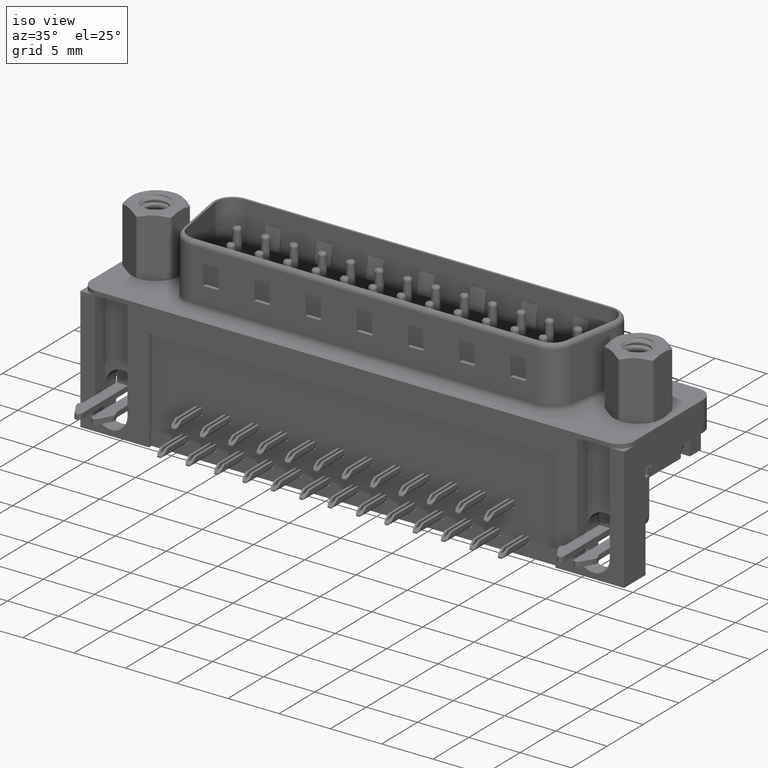
[diagram: clean part render]
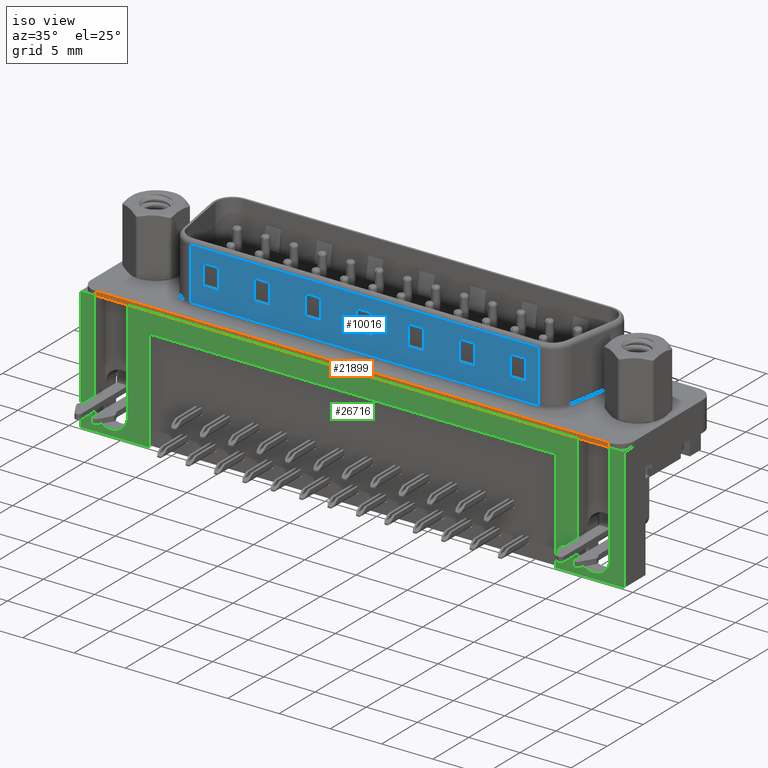
[diagram: same view with three faces highlighted in distinct colors, each labeled with its STEP entity id]
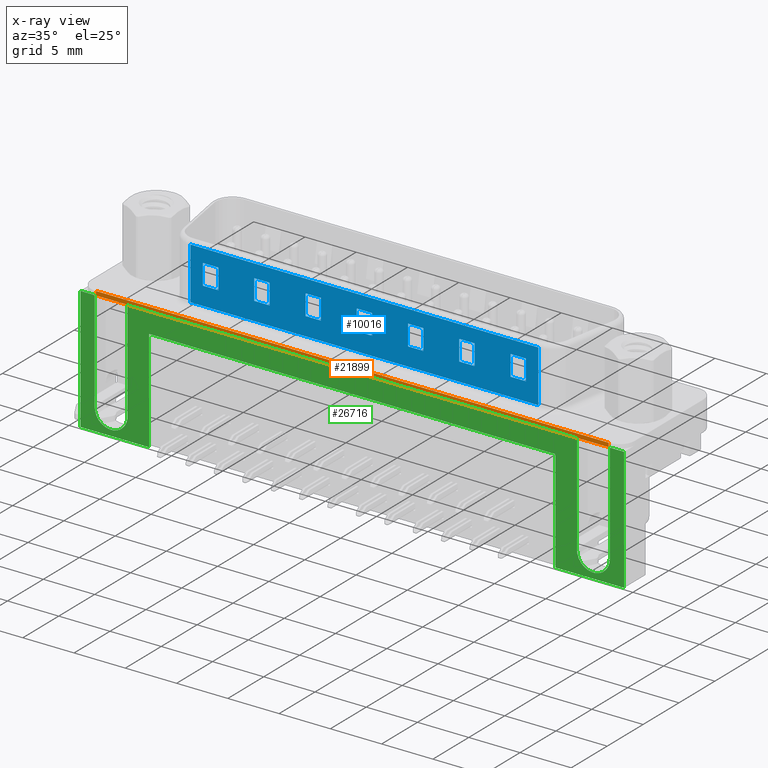
[diagram: x-ray of the same camera — body ghosted, the three highlighted faces saturated]
A machine part, iso view with three faces highlighted in distinct colors.
The next image is the same camera in x-ray (body ghosted, the three faces saturated) — at least one of them is partly hidden behind the body in this view.
Their STEP definitions:

[orange] entity #21899 — the highlighted planar face has unit normal (-0, 1, 0).
#557 = CARTESIAN_POINT ( 'NONE',  ( 48.53999999999999900, -6.275000000000001200, 0.4000000000000000200 ) ) ;
#1678 = CARTESIAN_POINT ( 'NONE',  ( 48.53999999999999900, -6.275000000000001200, 0.4000000000000000200 ) ) ;
#2443 = ORIENTED_EDGE ( 'NONE', *, *, #23397, .F. ) ;
#2544 = VECTOR ( 'NONE', #23513, 1000.000000000000000 ) ;
#3698 = EDGE_LOOP ( 'NONE', ( #14385, #2443, #20752, #4701 ) ) ;
#3755 = VERTEX_POINT ( 'NONE', #6718 ) ;
#4364 = VECTOR ( 'NONE', #8789, 1000.000000000000000 ) ;
#4701 = ORIENTED_EDGE ( 'NONE', *, *, #14655, .T. ) ;
#4727 = VECTOR ( 'NONE', #8244, 1000.000000000000000 ) ;
#6357 = LINE ( 'NONE', #17770, #4364 ) ;
#6718 = CARTESIAN_POINT ( 'NONE',  ( -1.499999999999997600, -6.275000000000006600, 0.0000000000000000000 ) ) ;
#7169 = PLANE ( 'NONE',  #25568 ) ;
#7261 = DIRECTION ( 'NONE',  ( -1.040002083918949300E-016, 1.000000000000000000, 0.0000000000000000000 ) ) ;
#8244 = DIRECTION ( 'NONE',  ( 1.000000000000000000, 1.040002083918949200E-016, -0.0000000000000000000 ) ) ;
#8789 = DIRECTION ( 'NONE',  ( -0.0000000000000000000, -0.0000000000000000000, -1.000000000000000000 ) ) ;
#9469 = FACE_OUTER_BOUND ( 'NONE', #3698, .T. ) ;
#10821 = VERTEX_POINT ( 'NONE', #14776 ) ;
#11864 = VERTEX_POINT ( 'NONE', #18997 ) ;
#12860 = LINE ( 'NONE', #21285, #4727 ) ;
#13715 = DIRECTION ( 'NONE',  ( -1.000000000000000000, -1.040002083918949300E-016, 0.0000000000000000000 ) ) ;
#14385 = ORIENTED_EDGE ( 'NONE', *, *, #17149, .T. ) ;
#14655 = EDGE_CURVE ( 'NONE', #10821, #3755, #6357, .T. ) ;
#14776 = CARTESIAN_POINT ( 'NONE',  ( -1.499999999999997600, -6.275000000000006600, 0.4000000000000000200 ) ) ;
#15145 = VECTOR ( 'NONE', #27693, 1000.000000000000000 ) ;
#17149 = EDGE_CURVE ( 'NONE', #3755, #11864, #12860, .T. ) ;
#17770 = CARTESIAN_POINT ( 'NONE',  ( -1.499999999999997600, -6.275000000000006600, 0.4000000000000000200 ) ) ;
#18997 = CARTESIAN_POINT ( 'NONE',  ( 48.53999999999999900, -6.275000000000001200, 0.0000000000000000000 ) ) ;
#19561 = LINE ( 'NONE', #1678, #2544 ) ;
#19677 = VERTEX_POINT ( 'NONE', #28097 ) ;
#20752 = ORIENTED_EDGE ( 'NONE', *, *, #23378, .F. ) ;
#21285 = CARTESIAN_POINT ( 'NONE',  ( 48.53999999999999900, -6.275000000000001200, 0.0000000000000000000 ) ) ;
#21899 = ADVANCED_FACE ( 'NONE', ( #9469 ), #7169, .F. ) ;
#23378 = EDGE_CURVE ( 'NONE', #10821, #19677, #24618, .T. ) ;
#23397 = EDGE_CURVE ( 'NONE', #19677, #11864, #19561, .T. ) ;
#23513 = DIRECTION ( 'NONE',  ( -0.0000000000000000000, -0.0000000000000000000, -1.000000000000000000 ) ) ;
#24618 = LINE ( 'NONE', #27510, #15145 ) ;
#25568 = AXIS2_PLACEMENT_3D ( 'NONE', #557, #7261, #13715 ) ;
#27510 = CARTESIAN_POINT ( 'NONE',  ( 48.53999999999999900, -6.275000000000001200, 0.4000000000000000200 ) ) ;
#27693 = DIRECTION ( 'NONE',  ( 1.000000000000000000, 1.040002083918949200E-016, -0.0000000000000000000 ) ) ;
#28097 = CARTESIAN_POINT ( 'NONE',  ( 48.53999999999999900, -6.275000000000001200, 0.4000000000000000200 ) ) ;

[blue] entity #10016 — the highlighted planar face has unit normal (0, 1, 0).
#85 = CARTESIAN_POINT ( 'NONE',  ( 19.27000000000000300, -4.579999999999997400, 4.694948974278313300 ) ) ;
#124 = LINE ( 'NONE', #15496, #1464 ) ;
#166 = VECTOR ( 'NONE', #979, 1000.000000000000000 ) ;
#404 = EDGE_CURVE ( 'NONE', #442, #16379, #124, .T. ) ;
#442 = VERTEX_POINT ( 'NONE', #17946 ) ;
#468 = CARTESIAN_POINT ( 'NONE',  ( 39.26999999999999600, -4.580000000000005400, 6.500000000000000000 ) ) ;
#599 = VECTOR ( 'NONE', #27481, 1000.000000000000000 ) ;
#667 = EDGE_CURVE ( 'NONE', #10857, #8999, #16411, .T. ) ;
#752 = CARTESIAN_POINT ( 'NONE',  ( 37.76999999999999600, -4.579999999999997400, 4.694948974278313300 ) ) ;
#979 = DIRECTION ( 'NONE',  ( 1.000000000000000000, 0.0000000000000000000, 0.0000000000000000000 ) ) ;
#1001 = LINE ( 'NONE', #3633, #17643 ) ;
#1167 = VERTEX_POINT ( 'NONE', #752 ) ;
#1193 = CARTESIAN_POINT ( 'NONE',  ( 27.77000000000000300, -4.580000000000005400, 6.500000000000000000 ) ) ;
#1211 = VERTEX_POINT ( 'NONE', #26727 ) ;
#1256 = VERTEX_POINT ( 'NONE', #17854 ) ;
#1320 = LINE ( 'NONE', #11333, #7404 ) ;
#1369 = CARTESIAN_POINT ( 'NONE',  ( 27.77000000000000300, -4.579999999999997400, 4.694948974278313300 ) ) ;
#1434 = CARTESIAN_POINT ( 'NONE',  ( 22.77000000000000300, -4.580000000000005400, 6.500000000000000000 ) ) ;
#1440 = ORIENTED_EDGE ( 'NONE', *, *, #20256, .T. ) ;
#1464 = VECTOR ( 'NONE', #9068, 1000.000000000000000 ) ;
#1495 = VERTEX_POINT ( 'NONE', #7917 ) ;
#1520 = ORIENTED_EDGE ( 'NONE', *, *, #10504, .T. ) ;
#1673 = VECTOR ( 'NONE', #15571, 1000.000000000000000 ) ;
#1720 = EDGE_LOOP ( 'NONE', ( #7730, #14722, #19382, #24642 ) ) ;
#1987 = CARTESIAN_POINT ( 'NONE',  ( 12.77000000000000100, -4.579999999999997400, 4.694948974278313300 ) ) ;
#2055 = PLANE ( 'NONE',  #18345 ) ;
#2058 = DIRECTION ( 'NONE',  ( 1.000000000000000000, 0.0000000000000000000, 0.0000000000000000000 ) ) ;
#2227 = EDGE_CURVE ( 'NONE', #25271, #15812, #20080, .T. ) ;
#2251 = CARTESIAN_POINT ( 'NONE',  ( 12.77000000000000100, -4.580000000000005400, 6.500000000000000000 ) ) ;
#2347 = CARTESIAN_POINT ( 'NONE',  ( 24.27000000000000300, -4.579999999999997400, 4.694948974278313300 ) ) ;
#2362 = VERTEX_POINT ( 'NONE', #20640 ) ;
#2390 = LINE ( 'NONE', #14026, #24819 ) ;
#2454 = ORIENTED_EDGE ( 'NONE', *, *, #21985, .T. ) ;
#2469 = DIRECTION ( 'NONE',  ( 0.0000000000000000000, 0.0000000000000000000, 1.000000000000000000 ) ) ;
#2547 = EDGE_CURVE ( 'NONE', #1167, #2362, #21696, .T. ) ;
#2863 = VECTOR ( 'NONE', #22203, 1000.000000000000000 ) ;
#3633 = CARTESIAN_POINT ( 'NONE',  ( 45.49015277954435300, -4.580000000000005400, 2.694948974278314600 ) ) ;
#3725 = VERTEX_POINT ( 'NONE', #8821 ) ;
#3732 = EDGE_CURVE ( 'NONE', #26139, #5264, #20615, .T. ) ;
#3833 = VECTOR ( 'NONE', #8935, 1000.000000000000000 ) ;
#3983 = ORIENTED_EDGE ( 'NONE', *, *, #15195, .T. ) ;
#4046 = EDGE_CURVE ( 'NONE', #11039, #6767, #25297, .T. ) ;
#4117 = EDGE_CURVE ( 'NONE', #27195, #25428, #26327, .T. ) ;
#4187 = CARTESIAN_POINT ( 'NONE',  ( 30.49015277954435300, -4.580000000000005400, 2.694948974278314600 ) ) ;
#4254 = ORIENTED_EDGE ( 'NONE', *, *, #6894, .T. ) ;
#4420 = ORIENTED_EDGE ( 'NONE', *, *, #11188, .T. ) ;
#4750 = LINE ( 'NONE', #21253, #21100 ) ;
#4834 = EDGE_CURVE ( 'NONE', #8999, #5914, #6574, .T. ) ;
#4870 = ORIENTED_EDGE ( 'NONE', *, *, #4834, .T. ) ;
#4965 = FACE_BOUND ( 'NONE', #7799, .T. ) ;
#5264 = VERTEX_POINT ( 'NONE', #14207 ) ;
#5382 = VERTEX_POINT ( 'NONE', #25921 ) ;
#5492 = VERTEX_POINT ( 'NONE', #1369 ) ;
#5762 = LINE ( 'NONE', #23203, #10825 ) ;
#5836 = DIRECTION ( 'NONE',  ( 0.0000000000000000000, -0.0000000000000000000, -1.000000000000000000 ) ) ;
#5848 = ORIENTED_EDGE ( 'NONE', *, *, #404, .T. ) ;
#5914 = VERTEX_POINT ( 'NONE', #2347 ) ;
#5966 = FACE_BOUND ( 'NONE', #26966, .T. ) ;
#6018 = VECTOR ( 'NONE', #2058, 1000.000000000000000 ) ;
#6255 = ORIENTED_EDGE ( 'NONE', *, *, #3732, .T. ) ;
#6574 = LINE ( 'NONE', #12052, #166 ) ;
#6680 = LINE ( 'NONE', #1193, #599 ) ;
#6767 = VERTEX_POINT ( 'NONE', #85 ) ;
#6778 = LINE ( 'NONE', #21012, #17693 ) ;
#6832 = DIRECTION ( 'NONE',  ( 0.0000000000000000000, 0.0000000000000000000, 1.000000000000000000 ) ) ;
#6894 = EDGE_CURVE ( 'NONE', #5914, #1256, #6778, .T. ) ;
#6926 = CARTESIAN_POINT ( 'NONE',  ( 32.77000000000000300, -4.580000000000005400, 2.694948974278314600 ) ) ;
#6989 = LINE ( 'NONE', #2251, #22304 ) ;
#7013 = CARTESIAN_POINT ( 'NONE',  ( 7.770000000000002200, -4.580000000000005400, 6.500000000000000000 ) ) ;
#7124 = EDGE_LOOP ( 'NONE', ( #23255, #23394, #15252, #4420 ) ) ;
#7283 = ORIENTED_EDGE ( 'NONE', *, *, #22186, .T. ) ;
#7404 = VECTOR ( 'NONE', #13813, 1000.000000000000000 ) ;
#7430 = VERTEX_POINT ( 'NONE', #26426 ) ;
#7445 = EDGE_CURVE ( 'NONE', #25903, #7430, #27506, .T. ) ;
#7730 = ORIENTED_EDGE ( 'NONE', *, *, #14856, .T. ) ;
#7741 = ORIENTED_EDGE ( 'NONE', *, *, #15212, .T. ) ;
#7775 = VECTOR ( 'NONE', #26458, 1000.000000000000000 ) ;
#7799 = EDGE_LOOP ( 'NONE', ( #4870, #4254, #18784, #27588 ) ) ;
#7813 = ORIENTED_EDGE ( 'NONE', *, *, #23840, .T. ) ;
#7917 = CARTESIAN_POINT ( 'NONE',  ( 29.27000000000000300, -4.579999999999997400, 4.694948974278313300 ) ) ;
#7927 = CARTESIAN_POINT ( 'NONE',  ( 9.269999999999999600, -4.580000000000005400, 6.500000000000000000 ) ) ;
#7964 = EDGE_CURVE ( 'NONE', #18782, #21101, #6989, .T. ) ;
#8282 = CARTESIAN_POINT ( 'NONE',  ( 7.770000000000002200, -4.580000000000005400, 2.694948974278314600 ) ) ;
#8359 = EDGE_CURVE ( 'NONE', #11030, #13265, #4750, .T. ) ;
#8821 = CARTESIAN_POINT ( 'NONE',  ( 29.27000000000000000, -4.580000000000005400, 2.694948974278314600 ) ) ;
#8935 = DIRECTION ( 'NONE',  ( 0.0000000000000000000, -0.0000000000000000000, -1.000000000000000000 ) ) ;
#8960 = EDGE_LOOP ( 'NONE', ( #1520, #6255, #7813, #22456 ) ) ;
#8999 = VERTEX_POINT ( 'NONE', #25298 ) ;
#9068 = DIRECTION ( 'NONE',  ( -0.0000000000000000000, -0.0000000000000000000, -1.000000000000000000 ) ) ;
#9377 = FACE_BOUND ( 'NONE', #1720, .T. ) ;
#9432 = VERTEX_POINT ( 'NONE', #25473 ) ;
#9611 = VECTOR ( 'NONE', #15045, 1000.000000000000000 ) ;
#9682 = DIRECTION ( 'NONE',  ( 1.000000000000000000, 0.0000000000000000000, 0.0000000000000000000 ) ) ;
#10016 = ADVANCED_FACE ( 'NONE', ( #23308, #26701, #9377, #15189, #5966, #23977, #4965, #20966 ), #2055, .F. ) ;
#10304 = LINE ( 'NONE', #468, #2863 ) ;
#10392 = ORIENTED_EDGE ( 'NONE', *, *, #13591, .T. ) ;
#10504 = EDGE_CURVE ( 'NONE', #2362, #26139, #10304, .T. ) ;
#10736 = CARTESIAN_POINT ( 'NONE',  ( 14.27000000000000000, -4.580000000000005400, 6.500000000000000000 ) ) ;
#10825 = VECTOR ( 'NONE', #16470, 1000.000000000000000 ) ;
#10840 = EDGE_CURVE ( 'NONE', #1495, #3725, #17138, .T. ) ;
#10857 = VERTEX_POINT ( 'NONE', #17706 ) ;
#11030 = VERTEX_POINT ( 'NONE', #18188 ) ;
#11039 = VERTEX_POINT ( 'NONE', #15904 ) ;
#11078 = CARTESIAN_POINT ( 'NONE',  ( 32.77000000000000300, -4.580000000000005400, 6.500000000000000000 ) ) ;
#11091 = CARTESIAN_POINT ( 'NONE',  ( 29.27000000000000000, -4.580000000000005400, 6.500000000000000000 ) ) ;
#11120 = CARTESIAN_POINT ( 'NONE',  ( 50.49015277954435300, -4.580000000000005400, 4.694948974278315000 ) ) ;
#11188 = EDGE_CURVE ( 'NONE', #21101, #12298, #17429, .T. ) ;
#11323 = ORIENTED_EDGE ( 'NONE', *, *, #18254, .T. ) ;
#11333 = CARTESIAN_POINT ( 'NONE',  ( 25.49015277954435600, -4.580000000000005400, 4.694948974278315000 ) ) ;
#11466 = DIRECTION ( 'NONE',  ( 1.000000000000000000, -0.0000000000000000000, 0.0000000000000000000 ) ) ;
#11605 = DIRECTION ( 'NONE',  ( 1.000000000000000000, 0.0000000000000000000, 0.0000000000000000000 ) ) ;
#11706 = VECTOR ( 'NONE', #19338, 1000.000000000000000 ) ;
#11804 = LINE ( 'NONE', #20240, #20328 ) ;
#11833 = VECTOR ( 'NONE', #5836, 1000.000000000000000 ) ;
#12052 = CARTESIAN_POINT ( 'NONE',  ( 40.49015277954435300, -4.580000000000005400, 4.694948974278315000 ) ) ;
#12211 = VECTOR ( 'NONE', #6832, 1000.000000000000000 ) ;
#12298 = VERTEX_POINT ( 'NONE', #12715 ) ;
#12456 = ORIENTED_EDGE ( 'NONE', *, *, #13570, .T. ) ;
#12479 = DIRECTION ( 'NONE',  ( -1.000000000000000000, 0.0000000000000000000, 0.0000000000000000000 ) ) ;
#12513 = CARTESIAN_POINT ( 'NONE',  ( 6.549847220455644600, -4.580000000000006300, 0.8999999999999998000 ) ) ;
#12685 = DIRECTION ( 'NONE',  ( 0.0000000000000000000, -0.0000000000000000000, -1.000000000000000000 ) ) ;
#12715 = CARTESIAN_POINT ( 'NONE',  ( 14.27000000000000100, -4.579999999999997400, 4.694948974278313300 ) ) ;
#12851 = CARTESIAN_POINT ( 'NONE',  ( 35.49015277954436000, -4.580000000000005400, 2.694948974278314600 ) ) ;
#13032 = ORIENTED_EDGE ( 'NONE', *, *, #7445, .T. ) ;
#13231 = CARTESIAN_POINT ( 'NONE',  ( 32.77000000000000300, -4.579999999999997400, 4.694948974278313300 ) ) ;
#13265 = VERTEX_POINT ( 'NONE', #20417 ) ;
#13570 = EDGE_CURVE ( 'NONE', #20660, #25903, #16362, .T. ) ;
#13591 = EDGE_CURVE ( 'NONE', #16379, #13265, #26504, .T. ) ;
#13655 = VECTOR ( 'NONE', #27250, 1000.000000000000000 ) ;
#13813 = DIRECTION ( 'NONE',  ( 1.000000000000000000, 0.0000000000000000000, 0.0000000000000000000 ) ) ;
#14026 = CARTESIAN_POINT ( 'NONE',  ( 50.49015277954435300, -4.580000000000005400, 2.694948974278314600 ) ) ;
#14202 = DIRECTION ( 'NONE',  ( -1.000000000000000000, 0.0000000000000000000, 0.0000000000000000000 ) ) ;
#14207 = CARTESIAN_POINT ( 'NONE',  ( 37.76999999999999600, -4.580000000000005400, 2.694948974278314600 ) ) ;
#14265 = DIRECTION ( 'NONE',  ( 0.0000000000000000000, -0.0000000000000000000, -1.000000000000000000 ) ) ;
#14310 = VECTOR ( 'NONE', #2469, 1000.000000000000000 ) ;
#14393 = CARTESIAN_POINT ( 'NONE',  ( 7.770000000000002200, -4.579999999999997400, 4.694948974278313300 ) ) ;
#14722 = ORIENTED_EDGE ( 'NONE', *, *, #4117, .T. ) ;
#14740 = LINE ( 'NONE', #4187, #9611 ) ;
#14856 = EDGE_CURVE ( 'NONE', #6767, #27195, #22414, .T. ) ;
#15031 = EDGE_CURVE ( 'NONE', #1256, #10857, #19696, .T. ) ;
#15045 = DIRECTION ( 'NONE',  ( -1.000000000000000000, 0.0000000000000000000, 0.0000000000000000000 ) ) ;
#15068 = LINE ( 'NONE', #10736, #17806 ) ;
#15189 = FACE_BOUND ( 'NONE', #7124, .T. ) ;
#15195 = EDGE_CURVE ( 'NONE', #3725, #1211, #1001, .T. ) ;
#15212 = EDGE_CURVE ( 'NONE', #21283, #26741, #24386, .T. ) ;
#15252 = ORIENTED_EDGE ( 'NONE', *, *, #7964, .T. ) ;
#15496 = CARTESIAN_POINT ( 'NONE',  ( 6.549847220455644600, -4.580000000000006300, 6.500000000000000000 ) ) ;
#15571 = DIRECTION ( 'NONE',  ( 1.000000000000000000, 0.0000000000000000000, 0.0000000000000000000 ) ) ;
#15597 = ORIENTED_EDGE ( 'NONE', *, *, #19860, .T. ) ;
#15645 = EDGE_CURVE ( 'NONE', #11030, #442, #25716, .T. ) ;
#15794 = EDGE_LOOP ( 'NONE', ( #19621, #3983, #15597, #7283 ) ) ;
#15812 = VERTEX_POINT ( 'NONE', #14393 ) ;
#15904 = CARTESIAN_POINT ( 'NONE',  ( 17.77000000000000000, -4.579999999999997400, 4.694948974278313300 ) ) ;
#16017 = EDGE_LOOP ( 'NONE', ( #27879, #22325, #5848, #10392 ) ) ;
#16018 = EDGE_CURVE ( 'NONE', #9432, #18782, #14740, .T. ) ;
#16362 = LINE ( 'NONE', #11078, #14310 ) ;
#16379 = VERTEX_POINT ( 'NONE', #12513 ) ;
#16411 = LINE ( 'NONE', #1434, #13655 ) ;
#16470 = DIRECTION ( 'NONE',  ( 0.0000000000000000000, -0.0000000000000000000, -1.000000000000000000 ) ) ;
#16869 = DIRECTION ( 'NONE',  ( -0.0000000000000000000, -0.0000000000000000000, -1.000000000000000000 ) ) ;
#17047 = CARTESIAN_POINT ( 'NONE',  ( 17.77000000000000000, -4.580000000000005400, 6.500000000000000000 ) ) ;
#17138 = LINE ( 'NONE', #11091, #3833 ) ;
#17429 = LINE ( 'NONE', #24690, #24549 ) ;
#17476 = VECTOR ( 'NONE', #20399, 1000.000000000000000 ) ;
#17643 = VECTOR ( 'NONE', #12479, 1000.000000000000000 ) ;
#17693 = VECTOR ( 'NONE', #14265, 1000.000000000000000 ) ;
#17706 = CARTESIAN_POINT ( 'NONE',  ( 22.77000000000000300, -4.580000000000005400, 2.694948974278314600 ) ) ;
#17726 = VECTOR ( 'NONE', #11466, 1000.000000000000000 ) ;
#17740 = EDGE_CURVE ( 'NONE', #5382, #20660, #2390, .T. ) ;
#17806 = VECTOR ( 'NONE', #12685, 1000.000000000000000 ) ;
#17854 = CARTESIAN_POINT ( 'NONE',  ( 24.27000000000000000, -4.580000000000005400, 2.694948974278314600 ) ) ;
#17946 = CARTESIAN_POINT ( 'NONE',  ( 6.549847220455644600, -4.580000000000006300, 6.000000000000000000 ) ) ;
#18188 = CARTESIAN_POINT ( 'NONE',  ( 40.49015277954435300, -4.580000000000005400, 6.000000000000000000 ) ) ;
#18208 = DIRECTION ( 'NONE',  ( -1.000000000000000000, -0.0000000000000000000, -0.0000000000000000000 ) ) ;
#18254 = EDGE_CURVE ( 'NONE', #26741, #25271, #25746, .T. ) ;
#18345 = AXIS2_PLACEMENT_3D ( 'NONE', #26270, #21933, #23907 ) ;
#18503 = CARTESIAN_POINT ( 'NONE',  ( 39.26999999999999600, -4.580000000000005400, 2.694948974278314600 ) ) ;
#18519 = LINE ( 'NONE', #24543, #17476 ) ;
#18782 = VERTEX_POINT ( 'NONE', #26398 ) ;
#18784 = ORIENTED_EDGE ( 'NONE', *, *, #15031, .T. ) ;
#19278 = ORIENTED_EDGE ( 'NONE', *, *, #17740, .T. ) ;
#19338 = DIRECTION ( 'NONE',  ( 0.0000000000000000000, 0.0000000000000000000, 1.000000000000000000 ) ) ;
#19382 = ORIENTED_EDGE ( 'NONE', *, *, #27196, .T. ) ;
#19621 = ORIENTED_EDGE ( 'NONE', *, *, #10840, .T. ) ;
#19684 = CARTESIAN_POINT ( 'NONE',  ( 9.270000000000001400, -4.579999999999997400, 4.694948974278313300 ) ) ;
#19696 = LINE ( 'NONE', #22600, #26771 ) ;
#19762 = DIRECTION ( 'NONE',  ( 0.0000000000000000000, 0.0000000000000000000, 1.000000000000000000 ) ) ;
#19860 = EDGE_CURVE ( 'NONE', #1211, #5492, #6680, .T. ) ;
#20080 = LINE ( 'NONE', #7013, #12211 ) ;
#20197 = DIRECTION ( 'NONE',  ( -1.000000000000000000, 0.0000000000000000000, 0.0000000000000000000 ) ) ;
#20236 = DIRECTION ( 'NONE',  ( -1.000000000000000000, 0.0000000000000000000, 0.0000000000000000000 ) ) ;
#20240 = CARTESIAN_POINT ( 'NONE',  ( 45.49015277954435300, -4.580000000000005400, 4.694948974278315000 ) ) ;
#20256 = EDGE_CURVE ( 'NONE', #7430, #5382, #5762, .T. ) ;
#20257 = VECTOR ( 'NONE', #11605, 1000.000000000000000 ) ;
#20328 = VECTOR ( 'NONE', #26857, 1000.000000000000000 ) ;
#20399 = DIRECTION ( 'NONE',  ( 0.0000000000000000000, 0.0000000000000000000, 1.000000000000000000 ) ) ;
#20417 = CARTESIAN_POINT ( 'NONE',  ( 40.49015277954435300, -4.580000000000005400, 0.8999999999999998000 ) ) ;
#20581 = CARTESIAN_POINT ( 'NONE',  ( 35.49015277954436000, -4.580000000000005400, 4.694948974278315000 ) ) ;
#20591 = VECTOR ( 'NONE', #21057, 1000.000000000000000 ) ;
#20615 = LINE ( 'NONE', #21881, #27712 ) ;
#20640 = CARTESIAN_POINT ( 'NONE',  ( 39.26999999999999600, -4.579999999999997400, 4.694948974278313300 ) ) ;
#20660 = VERTEX_POINT ( 'NONE', #6926 ) ;
#20966 = FACE_OUTER_BOUND ( 'NONE', #16017, .T. ) ;
#21012 = CARTESIAN_POINT ( 'NONE',  ( 24.27000000000000000, -4.580000000000005400, 6.500000000000000000 ) ) ;
#21057 = DIRECTION ( 'NONE',  ( -1.000000000000000000, 0.0000000000000000000, 0.0000000000000000000 ) ) ;
#21100 = VECTOR ( 'NONE', #16869, 1000.000000000000000 ) ;
#21101 = VERTEX_POINT ( 'NONE', #1987 ) ;
#21133 = ORIENTED_EDGE ( 'NONE', *, *, #2227, .T. ) ;
#21253 = CARTESIAN_POINT ( 'NONE',  ( 40.49015277954435300, -4.580000000000005400, 6.500000000000000000 ) ) ;
#21283 = VERTEX_POINT ( 'NONE', #19684 ) ;
#21696 = LINE ( 'NONE', #25402, #6018 ) ;
#21770 = DIRECTION ( 'NONE',  ( -1.000000000000000000, 0.0000000000000000000, 0.0000000000000000000 ) ) ;
#21881 = CARTESIAN_POINT ( 'NONE',  ( 55.49015277954435300, -4.580000000000005400, 2.694948974278314600 ) ) ;
#21933 = DIRECTION ( 'NONE',  ( 0.0000000000000000000, 1.000000000000000000, -0.0000000000000000000 ) ) ;
#21985 = EDGE_CURVE ( 'NONE', #15812, #21283, #1320, .T. ) ;
#22186 = EDGE_CURVE ( 'NONE', #5492, #1495, #11804, .T. ) ;
#22203 = DIRECTION ( 'NONE',  ( 0.0000000000000000000, -0.0000000000000000000, -1.000000000000000000 ) ) ;
#22304 = VECTOR ( 'NONE', #19762, 1000.000000000000000 ) ;
#22325 = ORIENTED_EDGE ( 'NONE', *, *, #15645, .T. ) ;
#22414 = LINE ( 'NONE', #26188, #7775 ) ;
#22456 = ORIENTED_EDGE ( 'NONE', *, *, #2547, .T. ) ;
#22600 = CARTESIAN_POINT ( 'NONE',  ( 40.49015277954435300, -4.580000000000005400, 2.694948974278314600 ) ) ;
#23203 = CARTESIAN_POINT ( 'NONE',  ( 34.27000000000000300, -4.580000000000005400, 6.500000000000000000 ) ) ;
#23255 = ORIENTED_EDGE ( 'NONE', *, *, #24662, .T. ) ;
#23308 = FACE_BOUND ( 'NONE', #27683, .T. ) ;
#23394 = ORIENTED_EDGE ( 'NONE', *, *, #16018, .T. ) ;
#23744 = CARTESIAN_POINT ( 'NONE',  ( 17.77000000000000000, -4.580000000000005400, 2.694948974278314600 ) ) ;
#23840 = EDGE_CURVE ( 'NONE', #5264, #1167, #18519, .T. ) ;
#23907 = DIRECTION ( 'NONE',  ( 0.0000000000000000000, 0.0000000000000000000, 1.000000000000000000 ) ) ;
#23944 = LINE ( 'NONE', #17047, #11706 ) ;
#23977 = FACE_BOUND ( 'NONE', #15794, .T. ) ;
#24386 = LINE ( 'NONE', #7927, #11833 ) ;
#24487 = CARTESIAN_POINT ( 'NONE',  ( 40.49015277954435300, -4.580000000000005400, 0.8999999999999998000 ) ) ;
#24543 = CARTESIAN_POINT ( 'NONE',  ( 37.76999999999999600, -4.580000000000005400, 6.500000000000000000 ) ) ;
#24549 = VECTOR ( 'NONE', #9682, 1000.000000000000000 ) ;
#24642 = ORIENTED_EDGE ( 'NONE', *, *, #4046, .T. ) ;
#24662 = EDGE_CURVE ( 'NONE', #12298, #9432, #15068, .T. ) ;
#24690 = CARTESIAN_POINT ( 'NONE',  ( 30.49015277954435300, -4.580000000000005400, 4.694948974278315000 ) ) ;
#24762 = VECTOR ( 'NONE', #20197, 1000.000000000000000 ) ;
#24812 = CARTESIAN_POINT ( 'NONE',  ( 40.49015277954435300, -4.580000000000005400, 6.000000000000000000 ) ) ;
#24819 = VECTOR ( 'NONE', #14202, 1000.000000000000000 ) ;
#24895 = CARTESIAN_POINT ( 'NONE',  ( 25.49015277954435600, -4.580000000000005400, 2.694948974278314600 ) ) ;
#24987 = CARTESIAN_POINT ( 'NONE',  ( 19.27000000000000000, -4.580000000000005400, 2.694948974278314600 ) ) ;
#25271 = VERTEX_POINT ( 'NONE', #8282 ) ;
#25297 = LINE ( 'NONE', #20581, #20257 ) ;
#25298 = CARTESIAN_POINT ( 'NONE',  ( 22.77000000000000300, -4.579999999999997400, 4.694948974278313300 ) ) ;
#25402 = CARTESIAN_POINT ( 'NONE',  ( 55.49015277954435300, -4.580000000000005400, 4.694948974278315000 ) ) ;
#25428 = VERTEX_POINT ( 'NONE', #23744 ) ;
#25473 = CARTESIAN_POINT ( 'NONE',  ( 14.26999999999999800, -4.580000000000005400, 2.694948974278314600 ) ) ;
#25716 = LINE ( 'NONE', #24812, #26742 ) ;
#25746 = LINE ( 'NONE', #24895, #24762 ) ;
#25903 = VERTEX_POINT ( 'NONE', #13231 ) ;
#25921 = CARTESIAN_POINT ( 'NONE',  ( 34.27000000000000300, -4.580000000000005400, 2.694948974278314600 ) ) ;
#26112 = CARTESIAN_POINT ( 'NONE',  ( 9.269999999999999600, -4.580000000000005400, 2.694948974278314600 ) ) ;
#26139 = VERTEX_POINT ( 'NONE', #18503 ) ;
#26188 = CARTESIAN_POINT ( 'NONE',  ( 19.27000000000000000, -4.580000000000005400, 6.500000000000000000 ) ) ;
#26270 = CARTESIAN_POINT ( 'NONE',  ( 40.49015277954435300, -4.580000000000005400, 6.500000000000000000 ) ) ;
#26327 = LINE ( 'NONE', #12851, #20591 ) ;
#26398 = CARTESIAN_POINT ( 'NONE',  ( 12.77000000000000100, -4.580000000000005400, 2.694948974278314600 ) ) ;
#26426 = CARTESIAN_POINT ( 'NONE',  ( 34.27000000000000300, -4.579999999999997400, 4.694948974278313300 ) ) ;
#26458 = DIRECTION ( 'NONE',  ( 0.0000000000000000000, -0.0000000000000000000, -1.000000000000000000 ) ) ;
#26504 = LINE ( 'NONE', #24487, #17726 ) ;
#26701 = FACE_BOUND ( 'NONE', #8960, .T. ) ;
#26727 = CARTESIAN_POINT ( 'NONE',  ( 27.77000000000000300, -4.580000000000005400, 2.694948974278314600 ) ) ;
#26741 = VERTEX_POINT ( 'NONE', #26112 ) ;
#26742 = VECTOR ( 'NONE', #18208, 1000.000000000000000 ) ;
#26771 = VECTOR ( 'NONE', #20236, 1000.000000000000000 ) ;
#26857 = DIRECTION ( 'NONE',  ( 1.000000000000000000, 0.0000000000000000000, 0.0000000000000000000 ) ) ;
#26966 = EDGE_LOOP ( 'NONE', ( #7741, #11323, #21133, #2454 ) ) ;
#27195 = VERTEX_POINT ( 'NONE', #24987 ) ;
#27196 = EDGE_CURVE ( 'NONE', #25428, #11039, #23944, .T. ) ;
#27250 = DIRECTION ( 'NONE',  ( 0.0000000000000000000, 0.0000000000000000000, 1.000000000000000000 ) ) ;
#27481 = DIRECTION ( 'NONE',  ( 0.0000000000000000000, 0.0000000000000000000, 1.000000000000000000 ) ) ;
#27506 = LINE ( 'NONE', #11120, #1673 ) ;
#27588 = ORIENTED_EDGE ( 'NONE', *, *, #667, .T. ) ;
#27683 = EDGE_LOOP ( 'NONE', ( #1440, #19278, #12456, #13032 ) ) ;
#27712 = VECTOR ( 'NONE', #21770, 1000.000000000000000 ) ;
#27879 = ORIENTED_EDGE ( 'NONE', *, *, #8359, .F. ) ;

[green] entity #26716 — the highlighted planar face has unit normal (0, -1, 0).
#126 = LINE ( 'NONE', #2929, #18482 ) ;
#443 = CARTESIAN_POINT ( 'NONE',  ( 50.03999999999997100, -6.275000000000000400, -12.00000000000000000 ) ) ;
#482 = CARTESIAN_POINT ( 'NONE',  ( -1.600000000000000800, -6.275000000000000400, -2.168404344971008900E-016 ) ) ;
#508 = EDGE_CURVE ( 'NONE', #14436, #17626, #2463, .T. ) ;
#560 = EDGE_CURVE ( 'NONE', #4169, #25951, #126, .T. ) ;
#885 = DIRECTION ( 'NONE',  ( 1.000000000000000000, 0.0000000000000000000, 0.0000000000000000000 ) ) ;
#930 = VECTOR ( 'NONE', #9618, 1000.000000000000000 ) ;
#1494 = CARTESIAN_POINT ( 'NONE',  ( 3.699999999999982900, -6.275000000000000400, -12.00000000000000000 ) ) ;
#1529 = CARTESIAN_POINT ( 'NONE',  ( 45.43999999999996200, -6.275000000000009200, -9.850000000000001400 ) ) ;
#1961 = CARTESIAN_POINT ( 'NONE',  ( 48.63999999999995100, -6.275000000000010100, -9.850000000000001400 ) ) ;
#1976 = VECTOR ( 'NONE', #7453, 1000.000000000000000 ) ;
#2265 = CARTESIAN_POINT ( 'NONE',  ( -3.000000000000016400, -6.275000000000000400, -2.500000000000000000 ) ) ;
#2399 = CARTESIAN_POINT ( 'NONE',  ( 50.03999999999997100, -6.275000000000000400, -12.00000000000000000 ) ) ;
#2463 = LINE ( 'NONE', #11637, #17439 ) ;
#2552 = VERTEX_POINT ( 'NONE', #19204 ) ;
#2574 = LINE ( 'NONE', #443, #3917 ) ;
#2929 = CARTESIAN_POINT ( 'NONE',  ( -3.000000000000016400, -6.275000000000000400, 0.0000000000000000000 ) ) ;
#2958 = LINE ( 'NONE', #22367, #27437 ) ;
#2961 = CARTESIAN_POINT ( 'NONE',  ( 3.699999999999983700, -6.275000000000000400, -2.000000000000000000 ) ) ;
#2969 = DIRECTION ( 'NONE',  ( -1.970636860084006900E-016, -1.000000000000000000, 0.0000000000000000000 ) ) ;
#3030 = ORIENTED_EDGE ( 'NONE', *, *, #23720, .F. ) ;
#3262 = CARTESIAN_POINT ( 'NONE',  ( 47.03999999999995700, -6.275000000000010100, -9.850000000000001400 ) ) ;
#3313 = DIRECTION ( 'NONE',  ( 1.000000000000000000, 0.0000000000000000000, 0.0000000000000000000 ) ) ;
#3917 = VECTOR ( 'NONE', #6557, 1000.000000000000000 ) ;
#3993 = VERTEX_POINT ( 'NONE', #21991 ) ;
#4019 = CARTESIAN_POINT ( 'NONE',  ( -1.600000000000000800, -6.275000000000000400, -9.850000000000001400 ) ) ;
#4169 = VERTEX_POINT ( 'NONE', #17749 ) ;
#4525 = CIRCLE ( 'NONE', #15104, 1.599999999999997200 ) ;
#4547 = LINE ( 'NONE', #24433, #23920 ) ;
#4967 = ORIENTED_EDGE ( 'NONE', *, *, #18158, .F. ) ;
#5037 = LINE ( 'NONE', #21244, #24391 ) ;
#5212 = EDGE_CURVE ( 'NONE', #25951, #15319, #13323, .T. ) ;
#5227 = CARTESIAN_POINT ( 'NONE',  ( -3.000000000000016400, -6.275000000000000400, 0.0000000000000000000 ) ) ;
#5352 = DIRECTION ( 'NONE',  ( -1.000000000000000000, 0.0000000000000000000, 0.0000000000000000000 ) ) ;
#5739 = ORIENTED_EDGE ( 'NONE', *, *, #5212, .F. ) ;
#6318 = VECTOR ( 'NONE', #27090, 1000.000000000000000 ) ;
#6557 = DIRECTION ( 'NONE',  ( -1.000000000000000000, 0.0000000000000000000, 0.0000000000000000000 ) ) ;
#6611 = EDGE_LOOP ( 'NONE', ( #12559, #15497, #23838, #18879, #15503, #8558, #5739, #27834, #13317, #4967, #16044, #13068, #3030, #23516, #26632, #19054 ) ) ;
#6615 = CARTESIAN_POINT ( 'NONE',  ( -3.000000000000016400, -6.275000000000000400, -12.00000000000000000 ) ) ;
#6866 = CIRCLE ( 'NONE', #18391, 1.600000000000000800 ) ;
#7243 = DIRECTION ( 'NONE',  ( 0.0000000000000000000, 0.0000000000000000000, 1.000000000000000000 ) ) ;
#7453 = DIRECTION ( 'NONE',  ( 0.0000000000000000000, 0.0000000000000000000, -1.000000000000000000 ) ) ;
#8368 = VERTEX_POINT ( 'NONE', #15484 ) ;
#8421 = VECTOR ( 'NONE', #11208, 1000.000000000000000 ) ;
#8528 = LINE ( 'NONE', #5227, #25853 ) ;
#8558 = ORIENTED_EDGE ( 'NONE', *, *, #11623, .F. ) ;
#9070 = DIRECTION ( 'NONE',  ( -1.000000000000000000, -0.0000000000000000000, -0.0000000000000000000 ) ) ;
#9435 = LINE ( 'NONE', #2265, #10769 ) ;
#9491 = DIRECTION ( 'NONE',  ( 0.0000000000000000000, -1.000000000000000000, 0.0000000000000000000 ) ) ;
#9618 = DIRECTION ( 'NONE',  ( -8.673617379884035500E-017, 0.0000000000000000000, -1.000000000000000000 ) ) ;
#9825 = EDGE_CURVE ( 'NONE', #2552, #26528, #18951, .T. ) ;
#10115 = VERTEX_POINT ( 'NONE', #24444 ) ;
#10705 = EDGE_CURVE ( 'NONE', #23286, #14436, #4525, .T. ) ;
#10769 = VECTOR ( 'NONE', #15029, 1000.000000000000000 ) ;
#11208 = DIRECTION ( 'NONE',  ( -1.000000000000000000, 0.0000000000000000000, 0.0000000000000000000 ) ) ;
#11220 = CARTESIAN_POINT ( 'NONE',  ( -1.600000000000000800, -6.275000000000000400, -2.168404344971008900E-016 ) ) ;
#11623 = EDGE_CURVE ( 'NONE', #15319, #3993, #6866, .T. ) ;
#11637 = CARTESIAN_POINT ( 'NONE',  ( 48.63999999999995100, -6.275000000000010100, 0.0000000000000000000 ) ) ;
#11876 = LINE ( 'NONE', #26733, #13236 ) ;
#12117 = LINE ( 'NONE', #13785, #6318 ) ;
#12489 = VERTEX_POINT ( 'NONE', #6615 ) ;
#12559 = ORIENTED_EDGE ( 'NONE', *, *, #508, .F. ) ;
#12687 = VERTEX_POINT ( 'NONE', #16507 ) ;
#13068 = ORIENTED_EDGE ( 'NONE', *, *, #13174, .F. ) ;
#13174 = EDGE_CURVE ( 'NONE', #22184, #2552, #11876, .T. ) ;
#13180 = FACE_OUTER_BOUND ( 'NONE', #6611, .T. ) ;
#13236 = VECTOR ( 'NONE', #9070, 1000.000000000000000 ) ;
#13317 = ORIENTED_EDGE ( 'NONE', *, *, #18417, .F. ) ;
#13323 = LINE ( 'NONE', #482, #23214 ) ;
#13675 = PLANE ( 'NONE',  #20249 ) ;
#13700 = CARTESIAN_POINT ( 'NONE',  ( 1.600000000000000300, -6.275000000000000400, 2.168404344971008900E-016 ) ) ;
#13743 = CARTESIAN_POINT ( 'NONE',  ( 1.925929944387235900E-031, -6.275000000000000400, -9.850000000000001400 ) ) ;
#13785 = CARTESIAN_POINT ( 'NONE',  ( 1.600000000000000300, -6.275000000000000400, 2.168404344971008900E-016 ) ) ;
#14436 = VERTEX_POINT ( 'NONE', #1961 ) ;
#14529 = CARTESIAN_POINT ( 'NONE',  ( 48.63999999999995100, -6.275000000000010100, 0.0000000000000000000 ) ) ;
#15029 = DIRECTION ( 'NONE',  ( 0.0000000000000000000, 0.0000000000000000000, 1.000000000000000000 ) ) ;
#15104 = AXIS2_PLACEMENT_3D ( 'NONE', #3262, #2969, #5352 ) ;
#15319 = VERTEX_POINT ( 'NONE', #4019 ) ;
#15484 = CARTESIAN_POINT ( 'NONE',  ( 45.43999999999996200, -6.275000000000009200, 0.0000000000000000000 ) ) ;
#15497 = ORIENTED_EDGE ( 'NONE', *, *, #10705, .F. ) ;
#15503 = ORIENTED_EDGE ( 'NONE', *, *, #20081, .F. ) ;
#15668 = EDGE_CURVE ( 'NONE', #10115, #19139, #2958, .T. ) ;
#15883 = DIRECTION ( 'NONE',  ( -1.970636860084006900E-016, -1.000000000000000000, 0.0000000000000000000 ) ) ;
#15903 = CARTESIAN_POINT ( 'NONE',  ( -3.000000000000016400, -6.275000000000000400, -2.500000000000000000 ) ) ;
#16044 = ORIENTED_EDGE ( 'NONE', *, *, #9825, .F. ) ;
#16346 = EDGE_CURVE ( 'NONE', #17626, #19139, #8528, .T. ) ;
#16507 = CARTESIAN_POINT ( 'NONE',  ( 43.33999999999997500, -6.275000000000000400, -12.00000000000000000 ) ) ;
#17439 = VECTOR ( 'NONE', #25103, 1000.000000000000000 ) ;
#17626 = VERTEX_POINT ( 'NONE', #14529 ) ;
#17749 = CARTESIAN_POINT ( 'NONE',  ( -3.000000000000016400, -6.275000000000000400, 0.0000000000000000000 ) ) ;
#18063 = DIRECTION ( 'NONE',  ( 1.000000000000000000, 0.0000000000000000000, 0.0000000000000000000 ) ) ;
#18158 = EDGE_CURVE ( 'NONE', #26528, #12489, #21058, .T. ) ;
#18391 = AXIS2_PLACEMENT_3D ( 'NONE', #13743, #15883, #18063 ) ;
#18417 = EDGE_CURVE ( 'NONE', #12489, #4169, #9435, .T. ) ;
#18482 = VECTOR ( 'NONE', #885, 1000.000000000000000 ) ;
#18610 = EDGE_CURVE ( 'NONE', #27109, #8368, #5037, .T. ) ;
#18697 = CARTESIAN_POINT ( 'NONE',  ( 45.43999999999996200, -6.275000000000009200, 0.0000000000000000000 ) ) ;
#18879 = ORIENTED_EDGE ( 'NONE', *, *, #18610, .F. ) ;
#18951 = LINE ( 'NONE', #2961, #930 ) ;
#19054 = ORIENTED_EDGE ( 'NONE', *, *, #16346, .F. ) ;
#19063 = DIRECTION ( 'NONE',  ( 1.000000000000000000, 0.0000000000000000000, 0.0000000000000000000 ) ) ;
#19139 = VERTEX_POINT ( 'NONE', #19968 ) ;
#19204 = CARTESIAN_POINT ( 'NONE',  ( 3.699999999999983700, -6.275000000000000400, -2.000000000000000000 ) ) ;
#19968 = CARTESIAN_POINT ( 'NONE',  ( 50.03999999999997100, -6.275000000000000400, 0.0000000000000000000 ) ) ;
#20081 = EDGE_CURVE ( 'NONE', #3993, #27109, #12117, .T. ) ;
#20249 = AXIS2_PLACEMENT_3D ( 'NONE', #15903, #9491, #22549 ) ;
#21058 = LINE ( 'NONE', #2399, #8421 ) ;
#21244 = CARTESIAN_POINT ( 'NONE',  ( -3.000000000000016400, -6.275000000000000400, 0.0000000000000000000 ) ) ;
#21973 = EDGE_CURVE ( 'NONE', #8368, #23286, #27473, .T. ) ;
#21991 = CARTESIAN_POINT ( 'NONE',  ( 1.600000000000000800, -6.275000000000000400, -9.850000000000001400 ) ) ;
#22184 = VERTEX_POINT ( 'NONE', #22405 ) ;
#22367 = CARTESIAN_POINT ( 'NONE',  ( 50.03999999999997100, -6.275000000000000400, -2.500000000000000000 ) ) ;
#22405 = CARTESIAN_POINT ( 'NONE',  ( 43.33999999999997500, -6.275000000000000400, -2.000000000000000000 ) ) ;
#22498 = DIRECTION ( 'NONE',  ( 2.201425730935034300E-017, 0.0000000000000000000, -1.000000000000000000 ) ) ;
#22549 = DIRECTION ( 'NONE',  ( 0.0000000000000000000, -0.0000000000000000000, -1.000000000000000000 ) ) ;
#23050 = EDGE_CURVE ( 'NONE', #10115, #12687, #2574, .T. ) ;
#23214 = VECTOR ( 'NONE', #22498, 1000.000000000000000 ) ;
#23286 = VERTEX_POINT ( 'NONE', #1529 ) ;
#23516 = ORIENTED_EDGE ( 'NONE', *, *, #23050, .F. ) ;
#23720 = EDGE_CURVE ( 'NONE', #12687, #22184, #4547, .T. ) ;
#23838 = ORIENTED_EDGE ( 'NONE', *, *, #21973, .F. ) ;
#23920 = VECTOR ( 'NONE', #26620, 1000.000000000000000 ) ;
#24391 = VECTOR ( 'NONE', #19063, 1000.000000000000000 ) ;
#24433 = CARTESIAN_POINT ( 'NONE',  ( 43.33999999999997500, -6.275000000000000400, -2.000000000000000000 ) ) ;
#24444 = CARTESIAN_POINT ( 'NONE',  ( 50.03999999999997100, -6.275000000000000400, -12.00000000000000000 ) ) ;
#25103 = DIRECTION ( 'NONE',  ( -0.0000000000000000000, -0.0000000000000000000, 1.000000000000000000 ) ) ;
#25853 = VECTOR ( 'NONE', #3313, 1000.000000000000000 ) ;
#25951 = VERTEX_POINT ( 'NONE', #11220 ) ;
#26528 = VERTEX_POINT ( 'NONE', #1494 ) ;
#26620 = DIRECTION ( 'NONE',  ( -0.0000000000000000000, -0.0000000000000000000, 1.000000000000000000 ) ) ;
#26632 = ORIENTED_EDGE ( 'NONE', *, *, #15668, .T. ) ;
#26716 = ADVANCED_FACE ( 'NONE', ( #13180 ), #13675, .T. ) ;
#26733 = CARTESIAN_POINT ( 'NONE',  ( 3.699999999999983700, -6.275000000000000400, -2.000000000000000000 ) ) ;
#27090 = DIRECTION ( 'NONE',  ( -4.402851461870068600E-017, -0.0000000000000000000, 1.000000000000000000 ) ) ;
#27109 = VERTEX_POINT ( 'NONE', #13700 ) ;
#27437 = VECTOR ( 'NONE', #7243, 1000.000000000000000 ) ;
#27473 = LINE ( 'NONE', #18697, #1976 ) ;
#27834 = ORIENTED_EDGE ( 'NONE', *, *, #560, .F. ) ;